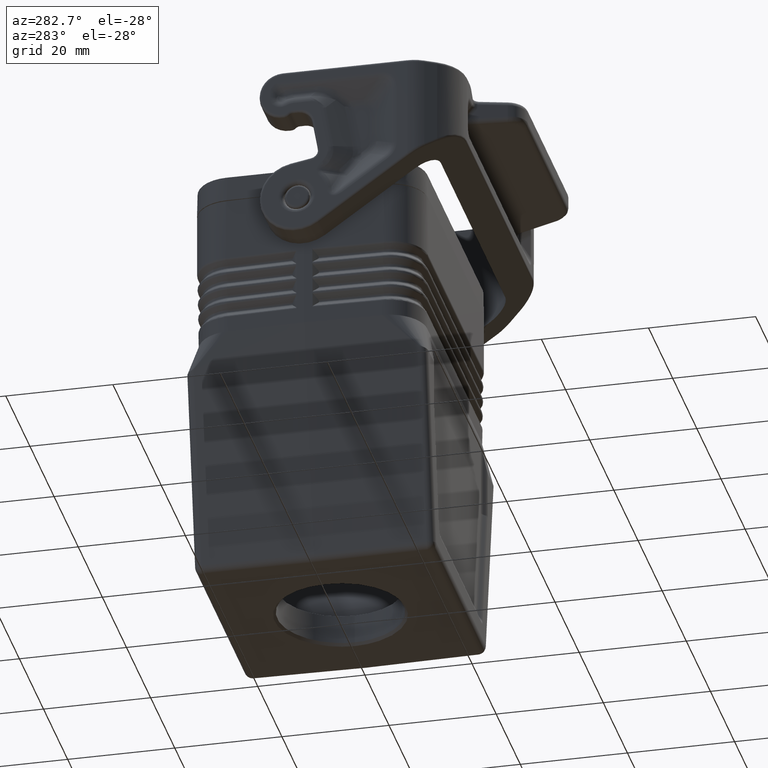
[diagram: clean part render]
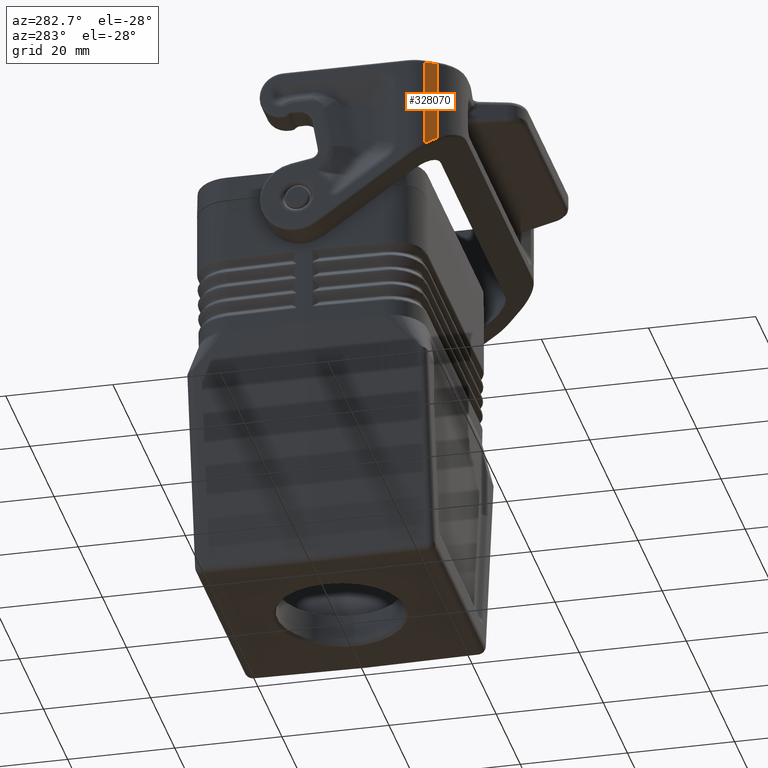
[diagram: same view with one face highlighted and labeled with its STEP entity id]
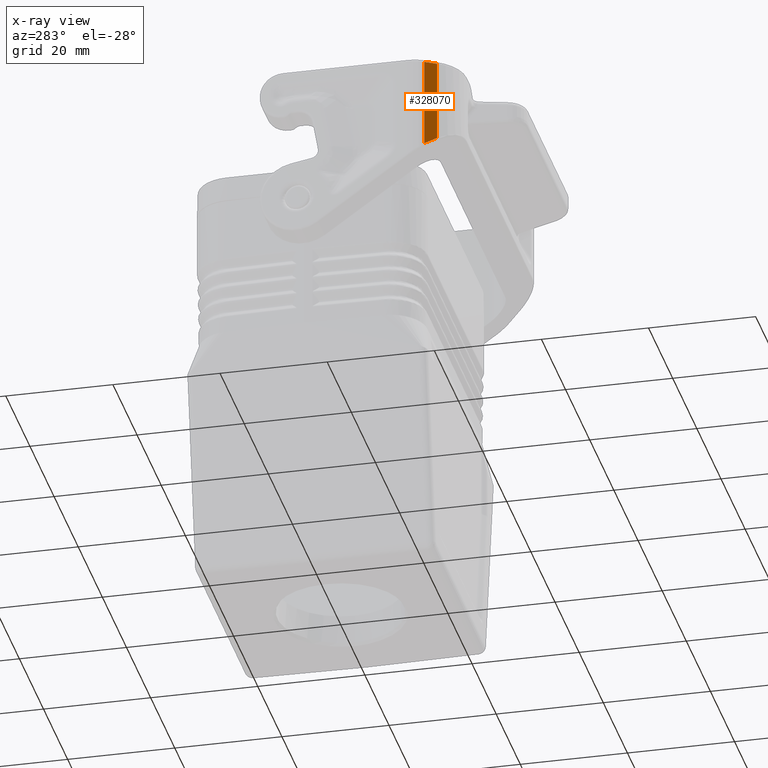
[diagram: x-ray of the same camera — body ghosted, the highlighted face saturated]
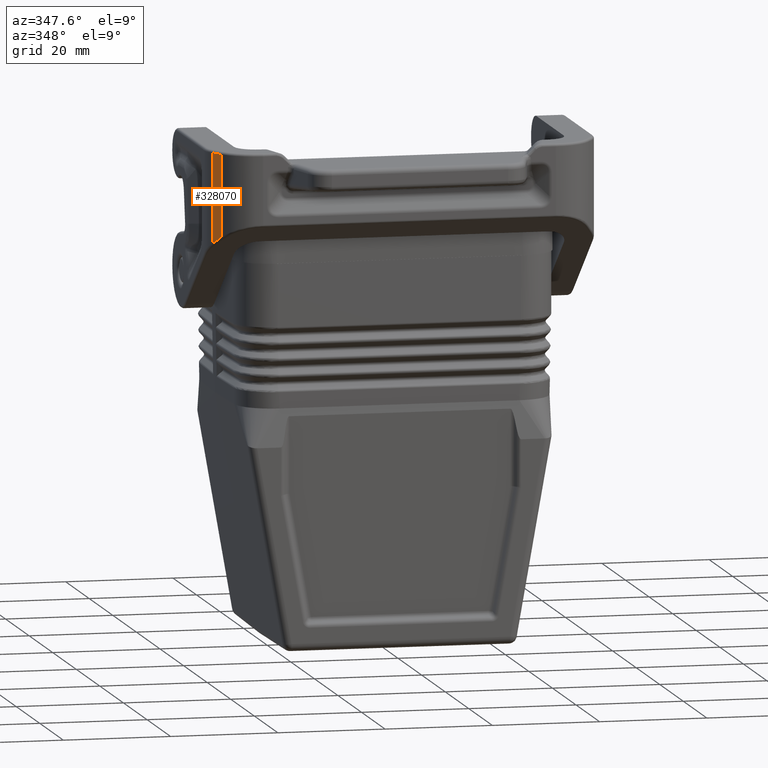
[diagram: same view with one face highlighted and labeled with its STEP entity id]
A machine part, auxiliary view. The second image highlights one B-rep face of the part: STEP entity #328070.
The next image is the same camera in x-ray: the body ghosted, the highlighted face saturated — about 0% of this face is hidden behind the body in this view.
A second angle (auxiliary view) of the same face is appended — the face is thin or edge-on in the first view.
In plain terms, the highlighted planar face has unit normal (-0.866, -0.5, 0).
Its self-contained STEP definition (entity closure, byte-faithful):
#326870=CARTESIAN_POINT('',(75.1240779769832,84.5392740578364,
-129.98222618257));
#326880=DIRECTION('',(2.18227770414454E-16,-5.36284219872094E-16,-1.));
#326890=VECTOR('',#326880,1.);
#326900=LINE('',#326870,#326890);
#326910=CARTESIAN_POINT('',(75.1240779769832,84.5392740578364,
-5.67025739751007));
#326920=VERTEX_POINT('',#326910);
#326930=CARTESIAN_POINT('',(75.1240779769832,84.5392740578365,
-20.9500000000499));
#326940=VERTEX_POINT('',#326930);
#326950=EDGE_CURVE('',#326920,#326940,#326900,.T.);
#327770=CARTESIAN_POINT('',(74.338180046515,84.9930124395478,
-14.655350128006));
#327780=DIRECTION('',(0.5,0.866025403784439,-3.55321872850726E-16));
#327790=DIRECTION('',(-0.866025403784439,0.5,-2.58460704045178E-16));
#327800=AXIS2_PLACEMENT_3D('',#327770,#327780,#327790);
#327810=PLANE('',#327800);
#327820=CARTESIAN_POINT('',(73.0163828223963,85.7561524227067,
-129.98222618257));
#327830=DIRECTION('',(2.18227770414515E-16,-5.36284219872129E-16,-1.));
#327840=VECTOR('',#327830,1.);
#327850=LINE('',#327820,#327840);
#327860=CARTESIAN_POINT('',(73.0163828223963,85.7561524227068,
-4.19443336202062));
#327870=VERTEX_POINT('',#327860);
#327880=CARTESIAN_POINT('',(73.0163828223963,85.7561524227068,
-20.9500000000499));
#327890=VERTEX_POINT('',#327880);
#327900=EDGE_CURVE('',#327870,#327890,#327850,.T.);
#327910=ORIENTED_EDGE('',*,*,#327900,.F.);
#327920=CARTESIAN_POINT('',(75.1240779769832,84.5392740578364,
-20.9500000000499));
#327930=DIRECTION('',(-0.866025403784439,0.5,-1.10871856190996E-15));
#327940=VECTOR('',#327930,1.);
#327950=LINE('',#327920,#327940);
#327960=EDGE_CURVE('',#326940,#327890,#327950,.T.);
#327970=ORIENTED_EDGE('',*,*,#327960,.T.);
#327980=ORIENTED_EDGE('',*,*,#326950,.T.);
#327990=CARTESIAN_POINT('',(73.0163827901623,85.7561524413171,
-4.1944333394501));
#328000=DIRECTION('',(0.740512440111195,-0.427535056636466,
-0.518512392703798));
#328010=VECTOR('',#328000,1.);
#328020=LINE('',#327990,#328010);
#328030=EDGE_CURVE('',#327870,#326920,#328020,.T.);
#328040=ORIENTED_EDGE('',*,*,#328030,.T.);
#328050=EDGE_LOOP('',(#328040,#327980,#327970,#327910));
#328060=FACE_OUTER_BOUND('',#328050,.T.);
#328070=ADVANCED_FACE('',(#328060),#327810,.T.);